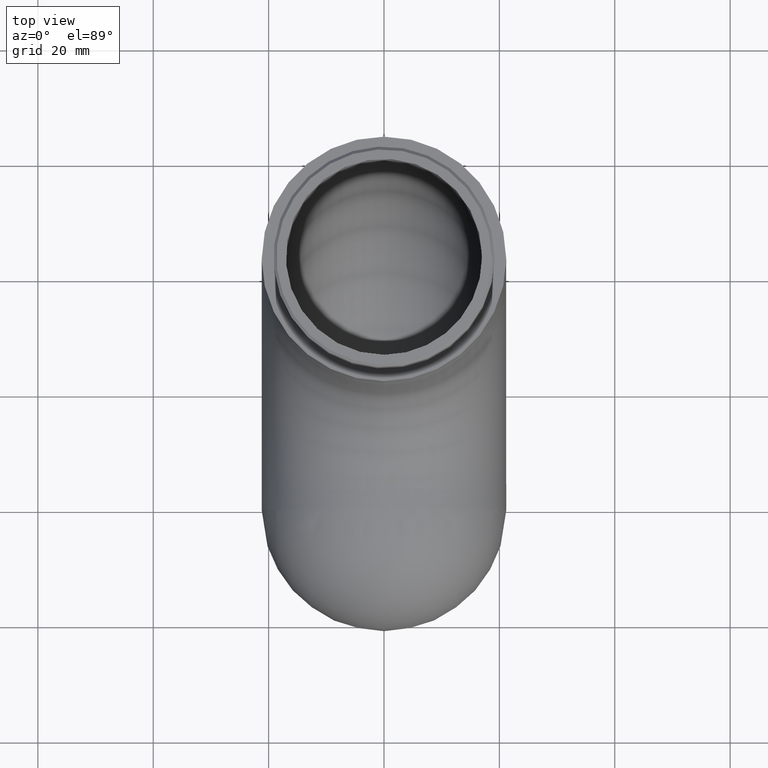
[diagram: clean part render]
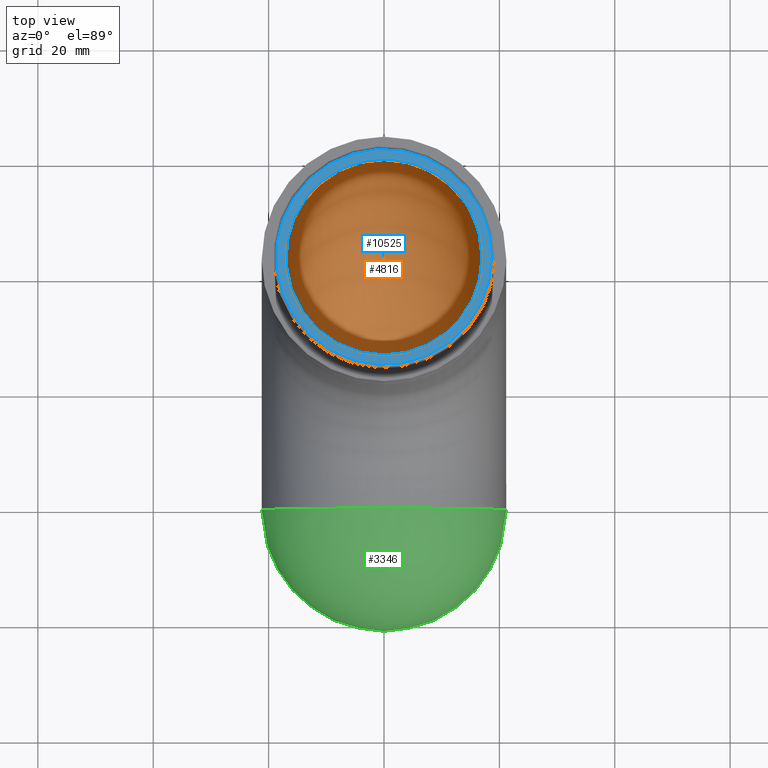
[diagram: same view with three faces highlighted in distinct colors, each labeled with its STEP entity id]
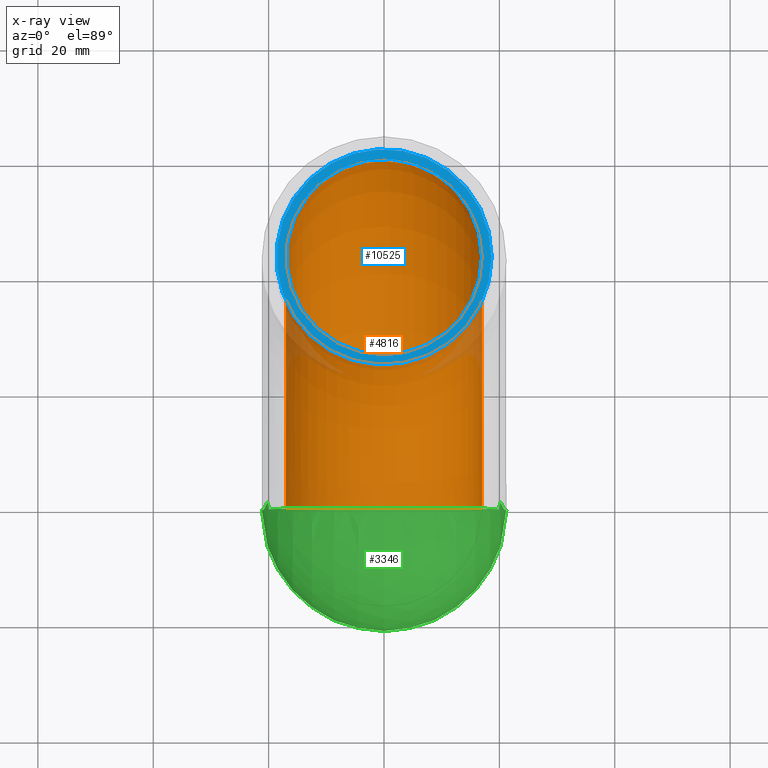
[diagram: x-ray of the same camera — body ghosted, the three highlighted faces saturated]
A machine part, top view with three faces highlighted in distinct colors.
The next image is the same camera in x-ray (body ghosted, the three faces saturated) — at least one of them is partly hidden behind the body in this view.
Their STEP definitions:

[orange] entity #4816 — the highlighted toroidal blend (fillet) surface has major radius 42.8 mm and minor (blend) radius 17 mm.
#188 = FACE_OUTER_BOUND ( 'NONE', #8376, .T. ) ;
#332 = TOROIDAL_SURFACE ( 'NONE', #3360, 42.80000000000000400, 17.00000000000000000 ) ;
#2194 = CARTESIAN_POINT ( 'NONE',  ( 0.0000000000000000000, 42.80000000000000400, 6.882764940616005400E-015 ) ) ;
#2434 = CARTESIAN_POINT ( 'NONE',  ( 0.0000000000000000000, 0.0000000000000000000, 0.0000000000000000000 ) ) ;
#2443 = CIRCLE ( 'NONE', #4501, 17.00000000000000000 ) ;
#3055 = ORIENTED_EDGE ( 'NONE', *, *, #3557, .T. ) ;
#3360 = AXIS2_PLACEMENT_3D ( 'NONE', #2434, #7831, #6860 ) ;
#3544 = EDGE_LOOP ( 'NONE', ( #9703 ) ) ;
#3557 = EDGE_CURVE ( 'NONE', #11092, #11092, #8687, .T. ) ;
#4024 = DIRECTION ( 'NONE',  ( 0.0000000000000000000, -1.000000000000000000, -1.608122649676636600E-016 ) ) ;
#4501 = AXIS2_PLACEMENT_3D ( 'NONE', #6084, #11619, #7850 ) ;
#4816 = ADVANCED_FACE ( 'NONE', ( #188, #9029 ), #332, .F. ) ;
#4889 = DIRECTION ( 'NONE',  ( 0.0000000000000000000, -1.608122649676636600E-016, 1.000000000000000000 ) ) ;
#5170 = CARTESIAN_POINT ( 'NONE',  ( 0.0000000000000000000, 25.80000000000000400, 4.148956436165723500E-015 ) ) ;
#6084 = CARTESIAN_POINT ( 'NONE',  ( 0.0000000000000000000, 0.0000000000000000000, -42.80000000000000400 ) ) ;
#6860 = DIRECTION ( 'NONE',  ( 0.0000000000000000000, 0.0000000000000000000, 1.000000000000000000 ) ) ;
#7831 = DIRECTION ( 'NONE',  ( -1.000000000000000000, -0.0000000000000000000, -0.0000000000000000000 ) ) ;
#7850 = DIRECTION ( 'NONE',  ( 0.0000000000000000000, 0.0000000000000000000, 1.000000000000000000 ) ) ;
#8079 = VERTEX_POINT ( 'NONE', #8918 ) ;
#8376 = EDGE_LOOP ( 'NONE', ( #3055 ) ) ;
#8687 = CIRCLE ( 'NONE', #10610, 17.00000000000000000 ) ;
#8918 = CARTESIAN_POINT ( 'NONE',  ( 0.0000000000000000000, 0.0000000000000000000, -25.80000000000000400 ) ) ;
#9029 = FACE_OUTER_BOUND ( 'NONE', #3544, .T. ) ;
#9703 = ORIENTED_EDGE ( 'NONE', *, *, #10518, .F. ) ;
#10518 = EDGE_CURVE ( 'NONE', #8079, #8079, #2443, .T. ) ;
#10610 = AXIS2_PLACEMENT_3D ( 'NONE', #2194, #4889, #4024 ) ;
#11092 = VERTEX_POINT ( 'NONE', #5170 ) ;
#11619 = DIRECTION ( 'NONE',  ( 0.0000000000000000000, 1.000000000000000000, 0.0000000000000000000 ) ) ;

[blue] entity #10525 — the highlighted planar face has unit normal (0, 0, 1).
#532 = ORIENTED_EDGE ( 'NONE', *, *, #2808, .T. ) ;
#1913 = EDGE_LOOP ( 'NONE', ( #5611 ) ) ;
#2486 = CARTESIAN_POINT ( 'NONE',  ( 17.00000000000000000, 42.80000000000000400, 20.00000000000000000 ) ) ;
#2542 = CARTESIAN_POINT ( 'NONE',  ( 0.0000000000000000000, 42.80000000000000400, 20.00000000000000000 ) ) ;
#2808 = EDGE_CURVE ( 'NONE', #4788, #4788, #3414, .T. ) ;
#3317 = FACE_OUTER_BOUND ( 'NONE', #9940, .T. ) ;
#3414 = CIRCLE ( 'NONE', #11767, 18.65000000000001300 ) ;
#4256 = DIRECTION ( 'NONE',  ( 0.0000000000000000000, 0.0000000000000000000, 1.000000000000000000 ) ) ;
#4339 = CARTESIAN_POINT ( 'NONE',  ( 0.0000000000000000000, 42.80000000000000400, 20.00000000000000000 ) ) ;
#4788 = VERTEX_POINT ( 'NONE', #10784 ) ;
#5375 = EDGE_CURVE ( 'NONE', #6224, #6224, #7725, .T. ) ;
#5611 = ORIENTED_EDGE ( 'NONE', *, *, #5375, .F. ) ;
#6224 = VERTEX_POINT ( 'NONE', #2486 ) ;
#7033 = PLANE ( 'NONE',  #10641 ) ;
#7325 = AXIS2_PLACEMENT_3D ( 'NONE', #2542, #9945, #8935 ) ;
#7410 = DIRECTION ( 'NONE',  ( 0.0000000000000000000, 0.0000000000000000000, 1.000000000000000000 ) ) ;
#7725 = CIRCLE ( 'NONE', #7325, 17.00000000000000000 ) ;
#8315 = DIRECTION ( 'NONE',  ( 1.000000000000000000, 0.0000000000000000000, 0.0000000000000000000 ) ) ;
#8935 = DIRECTION ( 'NONE',  ( 1.000000000000000000, 0.0000000000000000000, 0.0000000000000000000 ) ) ;
#9052 = FACE_BOUND ( 'NONE', #1913, .T. ) ;
#9940 = EDGE_LOOP ( 'NONE', ( #532 ) ) ;
#9945 = DIRECTION ( 'NONE',  ( 0.0000000000000000000, 0.0000000000000000000, 1.000000000000000000 ) ) ;
#10525 = ADVANCED_FACE ( 'NONE', ( #3317, #9052 ), #7033, .T. ) ;
#10641 = AXIS2_PLACEMENT_3D ( 'NONE', #4339, #4256, #10712 ) ;
#10712 = DIRECTION ( 'NONE',  ( 1.000000000000000000, 0.0000000000000000000, -0.0000000000000000000 ) ) ;
#10784 = CARTESIAN_POINT ( 'NONE',  ( 18.65000000000001300, 42.80000000000000400, 20.00000000000000000 ) ) ;
#10953 = CARTESIAN_POINT ( 'NONE',  ( 0.0000000000000000000, 42.80000000000000400, 20.00000000000000000 ) ) ;
#11767 = AXIS2_PLACEMENT_3D ( 'NONE', #10953, #7410, #8315 ) ;

[green] entity #3346 — the highlighted spherical surface has radius 21.2 mm.
#1250 = AXIS2_PLACEMENT_3D ( 'NONE', #3457, #3502, #6262 ) ;
#1393 = ORIENTED_EDGE ( 'NONE', *, *, #10743, .T. ) ;
#3346 = ADVANCED_FACE ( 'NONE', ( #10982 ), #10699, .T. ) ;
#3457 = CARTESIAN_POINT ( 'NONE',  ( 0.0000000000000000000, 0.1999999999999987900, -42.80000000000001100 ) ) ;
#3502 = DIRECTION ( 'NONE',  ( 1.000000000000000000, 0.0000000000000000000, 0.0000000000000000000 ) ) ;
#4509 = VERTEX_POINT ( 'NONE', #9771 ) ;
#4878 = DIRECTION ( 'NONE',  ( -0.0000000000000000000, -1.000000000000000000, 1.652117596168388200E-015 ) ) ;
#6262 = DIRECTION ( 'NONE',  ( 0.0000000000000000000, -1.651874064683103200E-015, -1.000000000000000000 ) ) ;
#6651 = CARTESIAN_POINT ( 'NONE',  ( 0.0000000000000000000, 3.469446951953614200E-014, -42.80000000000004000 ) ) ;
#7336 = AXIS2_PLACEMENT_3D ( 'NONE', #6651, #4878, #8502 ) ;
#8219 = CIRCLE ( 'NONE', #7336, 21.19905658278214100 ) ;
#8502 = DIRECTION ( 'NONE',  ( 0.0000000000000000000, -1.652117596168388200E-015, -1.000000000000000000 ) ) ;
#9771 = CARTESIAN_POINT ( 'NONE',  ( 0.0000000000000000000, -3.288648830475358700E-016, -63.99905658278218100 ) ) ;
#10084 = EDGE_LOOP ( 'NONE', ( #1393 ) ) ;
#10699 = SPHERICAL_SURFACE ( 'NONE', #1250, 21.19999999999999900 ) ;
#10743 = EDGE_CURVE ( 'NONE', #4509, #4509, #8219, .T. ) ;
#10982 = FACE_OUTER_BOUND ( 'NONE', #10084, .T. ) ;